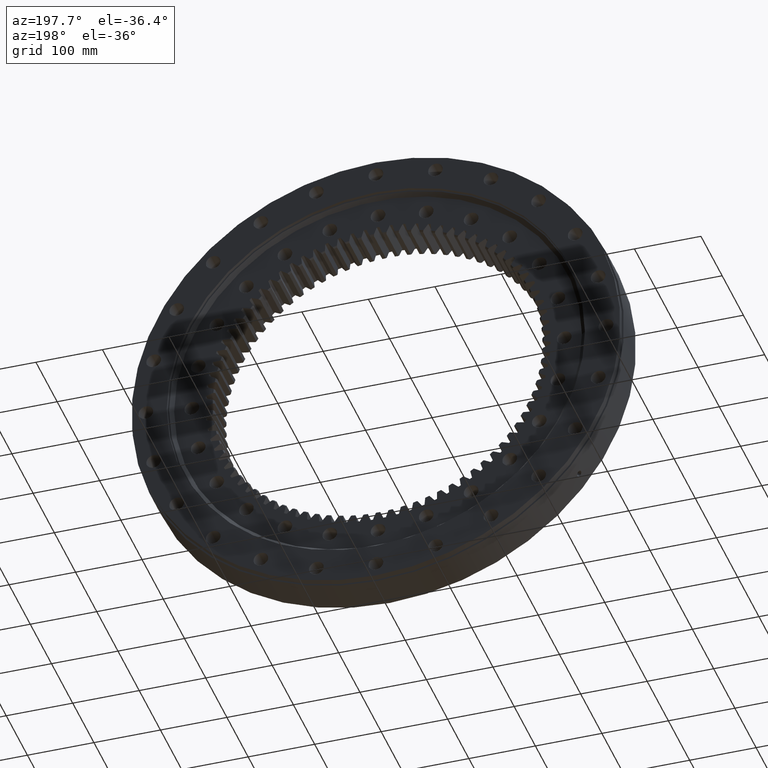
[diagram: clean part render]
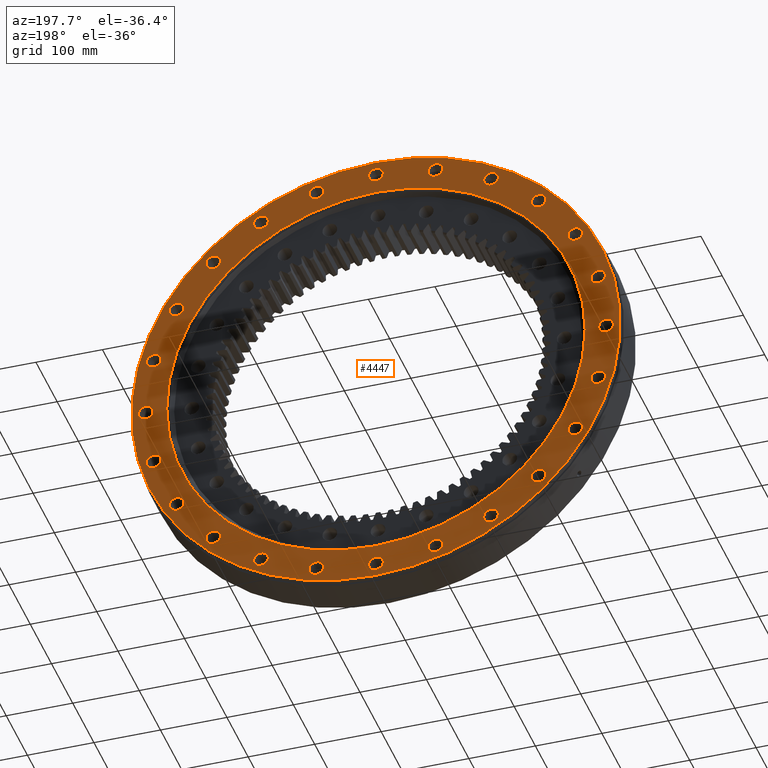
[diagram: same view with one face highlighted and labeled with its STEP entity id]
A machine part, auxiliary view. The second image highlights one B-rep face of the part: STEP entity #4447.
In plain terms, the highlighted planar face has unit normal (0, -1, -0).
Its self-contained STEP definition (entity closure, byte-faithful):
#24 = DIRECTION ( 'NONE',  ( 0.5000000000000007800, 0.0000000000000000000, 0.8660254037844382600 ) ) ;
#54 = CIRCLE ( 'NONE', #20363, 10.99999999999997200 ) ;
#70 = DIRECTION ( 'NONE',  ( 1.173697223544192200E-016, -1.000000000000000000, -3.494217355385783800E-017 ) ) ;
#99 = CARTESIAN_POINT ( 'NONE',  ( 172.9999999999959900, 38.00000000000005000, 299.6447897094180300 ) ) ;
#200 = CARTESIAN_POINT ( 'NONE',  ( 334.2103358960185900, 38.00000000000008500, -89.55138960546870000 ) ) ;
#221 = EDGE_LOOP ( 'NONE', ( #4248, #13904 ) ) ;
#222 = DIRECTION ( 'NONE',  ( 1.173697223544192200E-016, -1.000000000000000000, -3.494217355385783800E-017 ) ) ;
#233 = DIRECTION ( 'NONE',  ( 0.9659258262890670900, 0.0000000000000000000, -0.2588190451025252400 ) ) ;
#323 = VERTEX_POINT ( 'NONE', #11450 ) ;
#373 = EDGE_CURVE ( 'NONE', #15380, #14914, #3623, .T. ) ;
#429 = CIRCLE ( 'NONE', #5366, 367.5000000000000600 ) ;
#485 = AXIS2_PLACEMENT_3D ( 'NONE', #14928, #14878, #13262 ) ;
#541 = ORIENTED_EDGE ( 'NONE', *, *, #12255, .T. ) ;
#545 = ORIENTED_EDGE ( 'NONE', *, *, #2828, .T. ) ;
#556 = AXIS2_PLACEMENT_3D ( 'NONE', #20805, #20931, #20874 ) ;
#627 = VERTEX_POINT ( 'NONE', #15494 ) ;
#723 = EDGE_CURVE ( 'NONE', #18666, #11022, #4798, .T. ) ;
#844 = CIRCLE ( 'NONE', #21477, 11.00000000000000900 ) ;
#854 = EDGE_CURVE ( 'NONE', #4955, #9585, #6312, .T. ) ;
#957 = CARTESIAN_POINT ( 'NONE',  ( -346.0000000000000000, 38.00000000000000000, -11.00000000000140200 ) ) ;
#972 = VERTEX_POINT ( 'NONE', #16636 ) ;
#999 = CARTESIAN_POINT ( 'NONE',  ( 244.6589462905422700, 38.00000000000006400, 244.6589462905486100 ) ) ;
#1196 = CARTESIAN_POINT ( 'NONE',  ( 299.6447897094174700, 38.00000000000008500, -183.9999999999970700 ) ) ;
#1205 = CIRCLE ( 'NONE', #10893, 11.00000000000000900 ) ;
#1413 = AXIS2_PLACEMENT_3D ( 'NONE', #17283, #17515, #17810 ) ;
#1418 = CARTESIAN_POINT ( 'NONE',  ( -173.0000000000004800, 38.00000000000000700, 288.6447897094154200 ) ) ;
#1436 = AXIS2_PLACEMENT_3D ( 'NONE', #99, #70, #24 ) ;
#1458 = DIRECTION ( 'NONE',  ( 0.2588190451025145200, 0.0000000000000000000, -0.9659258262890698700 ) ) ;
#1467 = EDGE_LOOP ( 'NONE', ( #4225, #12843 ) ) ;
#1481 = DIRECTION ( 'NONE',  ( 1.173697223544192200E-016, -1.000000000000000000, -3.494217355385783800E-017 ) ) ;
#1509 = CARTESIAN_POINT ( 'NONE',  ( 89.55138960547488100, 38.00000000000007100, -334.2103358960168300 ) ) ;
#1591 = CARTESIAN_POINT ( 'NONE',  ( -5.028712439446564900E-012, 38.00000000000002800, 357.0000000000000000 ) ) ;
#1647 = CARTESIAN_POINT ( 'NONE',  ( -89.55138960547256500, 38.00000000000001400, 334.2103358960174500 ) ) ;
#1705 = VERTEX_POINT ( 'NONE', #1814 ) ;
#1716 = EDGE_CURVE ( 'NONE', #14833, #11109, #20801, .T. ) ;
#1721 = VERTEX_POINT ( 'NONE', #1591 ) ;
#1774 = CARTESIAN_POINT ( 'NONE',  ( -244.6589462905439500, 38.00000000000002100, -233.6589462905468500 ) ) ;
#1814 = CARTESIAN_POINT ( 'NONE',  ( 172.9999999999959900, 38.00000000000005000, 288.6447897094180300 ) ) ;
#1849 = CARTESIAN_POINT ( 'NONE',  ( -334.2103358960171700, 38.00000000000000000, -78.55138960547373000 ) ) ;
#1885 = DIRECTION ( 'NONE',  ( 1.173697223544192200E-016, -1.000000000000000000, -3.494217355385783800E-017 ) ) ;
#2051 = EDGE_CURVE ( 'NONE', #972, #16675, #19646, .T. ) ;
#2112 = AXIS2_PLACEMENT_3D ( 'NONE', #14117, #14041, #14141 ) ;
#2190 = VERTEX_POINT ( 'NONE', #12585 ) ;
#2238 = AXIS2_PLACEMENT_3D ( 'NONE', #12276, #17198, #16987 ) ;
#2383 = CARTESIAN_POINT ( 'NONE',  ( -299.6447897094162200, 38.00000000000000000, 183.9999999999991800 ) ) ;
#2625 = DIRECTION ( 'NONE',  ( -0.4999999999999891200, 0.0000000000000000000, 0.8660254037844450400 ) ) ;
#2684 = ORIENTED_EDGE ( 'NONE', *, *, #723, .T. ) ;
#2724 = AXIS2_PLACEMENT_3D ( 'NONE', #13553, #13629, #13600 ) ;
#2760 = ORIENTED_EDGE ( 'NONE', *, *, #6707, .T. ) ;
#2828 = EDGE_CURVE ( 'NONE', #13437, #8692, #17157, .T. ) ;
#2871 = AXIS2_PLACEMENT_3D ( 'NONE', #19954, #20311, #20489 ) ;
#2979 = EDGE_CURVE ( 'NONE', #21047, #12428, #17179, .T. ) ;
#3052 = AXIS2_PLACEMENT_3D ( 'NONE', #6731, #6805, #6827 ) ;
#3055 = DIRECTION ( 'NONE',  ( 1.173697223544192200E-016, -1.000000000000000000, -3.494217355385783800E-017 ) ) ;
#3068 = ORIENTED_EDGE ( 'NONE', *, *, #12860, .T. ) ;
#3102 = CARTESIAN_POINT ( 'NONE',  ( -346.0000000000000000, 38.00000000000000000, 10.99999999999860200 ) ) ;
#3122 = VERTEX_POINT ( 'NONE', #11400 ) ;
#3129 = EDGE_CURVE ( 'NONE', #16675, #972, #19007, .T. ) ;
#3279 = ORIENTED_EDGE ( 'NONE', *, *, #21083, .T. ) ;
#3315 = CARTESIAN_POINT ( 'NONE',  ( 334.2103358960185900, 38.00000000000008500, -100.5513896054687000 ) ) ;
#3366 = CARTESIAN_POINT ( 'NONE',  ( 244.6589462905477000, 38.00000000000007800, -244.6589462905431300 ) ) ;
#3623 = CIRCLE ( 'NONE', #8027, 11.00000000000000000 ) ;
#3877 = EDGE_CURVE ( 'NONE', #9665, #6852, #54, .T. ) ;
#3937 = ORIENTED_EDGE ( 'NONE', *, *, #13693, .T. ) ;
#4057 = EDGE_CURVE ( 'NONE', #1705, #6694, #9351, .T. ) ;
#4160 = VERTEX_POINT ( 'NONE', #1774 ) ;
#4186 = CIRCLE ( 'NONE', #19921, 11.00000000000002300 ) ;
#4225 = ORIENTED_EDGE ( 'NONE', *, *, #6395, .T. ) ;
#4248 = ORIENTED_EDGE ( 'NONE', *, *, #854, .T. ) ;
#4289 = VERTEX_POINT ( 'NONE', #8143 ) ;
#4352 = EDGE_LOOP ( 'NONE', ( #12825, #5717 ) ) ;
#4447 = ADVANCED_FACE ( 'NONE', ( #15071, #14787, #5737, #15118, #15282, #15194, #14978, #14562, #14742, #14780, #14401, #14435, #14508, #14263, #14280, #14373, #14195, #14242, #14259, #14074, #14100, #14120, #13906, #13925, #14029, #13723 ), #8994, .F. ) ;
#4459 = EDGE_LOOP ( 'NONE', ( #4824, #5560 ) ) ;
#4469 = CIRCLE ( 'NONE', #20648, 10.99999999999999800 ) ;
#4556 = EDGE_CURVE ( 'NONE', #6852, #9665, #13407, .T. ) ;
#4610 = AXIS2_PLACEMENT_3D ( 'NONE', #10048, #10051, #10071 ) ;
#4798 = CIRCLE ( 'NONE', #22945, 314.5875000000000300 ) ;
#4824 = ORIENTED_EDGE ( 'NONE', *, *, #20247, .T. ) ;
#4869 = VERTEX_POINT ( 'NONE', #4932 ) ;
#4932 = CARTESIAN_POINT ( 'NONE',  ( 173.0000000000025600, 38.00000000000007800, -310.6447897094142800 ) ) ;
#4953 = AXIS2_PLACEMENT_3D ( 'NONE', #18696, #18700, #18720 ) ;
#4955 = VERTEX_POINT ( 'NONE', #20771 ) ;
#5067 = DIRECTION ( 'NONE',  ( 0.8660254037844371500, 0.0000000000000000000, -0.5000000000000025500 ) ) ;
#5116 = VERTEX_POINT ( 'NONE', #16570 ) ;
#5168 = VERTEX_POINT ( 'NONE', #6287 ) ;
#5229 = CARTESIAN_POINT ( 'NONE',  ( -172.9999999999981200, 38.00000000000003600, -288.6447897094168400 ) ) ;
#5366 = AXIS2_PLACEMENT_3D ( 'NONE', #9718, #9680, #9738 ) ;
#5505 = AXIS2_PLACEMENT_3D ( 'NONE', #21055, #21009, #21025 ) ;
#5528 = AXIS2_PLACEMENT_3D ( 'NONE', #17978, #18352, #18204 ) ;
#5556 = CARTESIAN_POINT ( 'NONE',  ( 346.0000000000000000, 38.00000000000008500, 3.818138272015963700E-012 ) ) ;
#5560 = ORIENTED_EDGE ( 'NONE', *, *, #18274, .T. ) ;
#5578 = CIRCLE ( 'NONE', #16697, 11.00000000000000000 ) ;
#5588 = DIRECTION ( 'NONE',  ( 1.173697223544192200E-016, -1.000000000000000000, -3.494217355385783800E-017 ) ) ;
#5664 = CARTESIAN_POINT ( 'NONE',  ( -89.55138960546985100, 38.00000000000004300, -334.2103358960182500 ) ) ;
#5684 = CARTESIAN_POINT ( 'NONE',  ( -299.6447897094148500, 38.00000000000001400, -162.0000000000015300 ) ) ;
#5712 = DIRECTION ( 'NONE',  ( 1.173697223544192200E-016, -1.000000000000000000, -3.494217355385783800E-017 ) ) ;
#5717 = ORIENTED_EDGE ( 'NONE', *, *, #7416, .T. ) ;
#5720 = CARTESIAN_POINT ( 'NONE',  ( 299.6447897094136600, 38.00000000000007100, 173.0000000000036100 ) ) ;
#5732 = DIRECTION ( 'NONE',  ( 1.000000000000000000, 0.0000000000000000000, -3.546992490074383300E-015 ) ) ;
#5737 = FACE_BOUND ( 'NONE', #16458, .T. ) ;
#5756 = VERTEX_POINT ( 'NONE', #21580 ) ;
#5793 = EDGE_CURVE ( 'NONE', #20763, #8168, #20097, .T. ) ;
#5810 = CIRCLE ( 'NONE', #18519, 11.00000000000001100 ) ;
#5983 = EDGE_CURVE ( 'NONE', #6694, #1705, #7682, .T. ) ;
#6007 = AXIS2_PLACEMENT_3D ( 'NONE', #1647, #1885, #19518 ) ;
#6045 = DIRECTION ( 'NONE',  ( 0.7071067811865501300, 0.0000000000000000000, 0.7071067811865450200 ) ) ;
#6287 = CARTESIAN_POINT ( 'NONE',  ( 1.594029862801932000E-014, 38.00000000000003600, 367.5000000000000600 ) ) ;
#6312 = CIRCLE ( 'NONE', #10777, 10.99999999999999100 ) ;
#6395 = EDGE_CURVE ( 'NONE', #20970, #21313, #22747, .T. ) ;
#6406 = DIRECTION ( 'NONE',  ( 1.173697223544192200E-016, -1.000000000000000000, -3.494217355385783800E-017 ) ) ;
#6421 = AXIS2_PLACEMENT_3D ( 'NONE', #10804, #21935, #11804 ) ;
#6432 = CARTESIAN_POINT ( 'NONE',  ( -334.2103358960179700, 38.00000000000000000, 78.55138960547101600 ) ) ;
#6449 = CARTESIAN_POINT ( 'NONE',  ( 2.604297876731724900E-012, 38.00000000000005700, -346.0000000000000000 ) ) ;
#6470 = DIRECTION ( 'NONE',  ( 0.8660254037844393700, 0.0000000000000000000, 0.4999999999999987800 ) ) ;
#6475 = DIRECTION ( 'NONE',  ( -7.038473828917530100E-015, 0.0000000000000000000, -1.000000000000000000 ) ) ;
#6560 = AXIS2_PLACEMENT_3D ( 'NONE', #9815, #9821, #9848 ) ;
#6561 = DIRECTION ( 'NONE',  ( 1.173697223544192200E-016, -1.000000000000000000, -3.494217355385783800E-017 ) ) ;
#6565 = EDGE_CURVE ( 'NONE', #11022, #18666, #7959, .T. ) ;
#6605 = ORIENTED_EDGE ( 'NONE', *, *, #12594, .T. ) ;
#6628 = ORIENTED_EDGE ( 'NONE', *, *, #1716, .T. ) ;
#6694 = VERTEX_POINT ( 'NONE', #11589 ) ;
#6707 = EDGE_CURVE ( 'NONE', #7458, #9229, #5578, .T. ) ;
#6718 = EDGE_LOOP ( 'NONE', ( #12553, #2760 ) ) ;
#6731 = CARTESIAN_POINT ( 'NONE',  ( -89.55138960547256500, 38.00000000000001400, 334.2103358960174500 ) ) ;
#6757 = AXIS2_PLACEMENT_3D ( 'NONE', #21285, #21749, #21674 ) ;
#6796 = EDGE_LOOP ( 'NONE', ( #12237, #22074 ) ) ;
#6805 = DIRECTION ( 'NONE',  ( 1.173697223544192200E-016, -1.000000000000000000, -3.494217355385783800E-017 ) ) ;
#6827 = DIRECTION ( 'NONE',  ( -0.2588190451025075300, 0.0000000000000000000, 0.9659258262890719800 ) ) ;
#6852 = VERTEX_POINT ( 'NONE', #13486 ) ;
#7009 = EDGE_LOOP ( 'NONE', ( #21294, #21554 ) ) ;
#7045 = CARTESIAN_POINT ( 'NONE',  ( 334.2103358960165500, 38.00000000000008500, 78.55138960547607500 ) ) ;
#7149 = EDGE_CURVE ( 'NONE', #4160, #3122, #19550, .T. ) ;
#7246 = CARTESIAN_POINT ( 'NONE',  ( 2.608781700232964700E-012, 38.00000000000005700, -334.9999999999999400 ) ) ;
#7267 = EDGE_LOOP ( 'NONE', ( #22097, #21803 ) ) ;
#7377 = EDGE_LOOP ( 'NONE', ( #2684, #12291 ) ) ;
#7397 = EDGE_LOOP ( 'NONE', ( #3279, #15392 ) ) ;
#7416 = EDGE_CURVE ( 'NONE', #7702, #11827, #17249, .T. ) ;
#7442 = AXIS2_PLACEMENT_3D ( 'NONE', #18601, #18626, #18605 ) ;
#7458 = VERTEX_POINT ( 'NONE', #19199 ) ;
#7614 = EDGE_CURVE ( 'NONE', #5756, #4869, #16970, .T. ) ;
#7616 = VERTEX_POINT ( 'NONE', #20348 ) ;
#7661 = CARTESIAN_POINT ( 'NONE',  ( -6.927931878384833700E-014, 38.00000000000006400, -367.5000000000000600 ) ) ;
#7682 = CIRCLE ( 'NONE', #18017, 10.99999999999999500 ) ;
#7702 = VERTEX_POINT ( 'NONE', #21001 ) ;
#7715 = EDGE_CURVE ( 'NONE', #14914, #15380, #21572, .T. ) ;
#7776 = DIRECTION ( 'NONE',  ( 1.173697223544192200E-016, -1.000000000000000000, -3.494217355385783800E-017 ) ) ;
#7928 = CIRCLE ( 'NONE', #10854, 11.00000000000000900 ) ;
#7959 = CIRCLE ( 'NONE', #4610, 314.5875000000000300 ) ;
#7995 = DIRECTION ( 'NONE',  ( -0.9659258262890708700, 0.0000000000000000000, -0.2588190451025110300 ) ) ;
#8027 = AXIS2_PLACEMENT_3D ( 'NONE', #22271, #22225, #22127 ) ;
#8143 = CARTESIAN_POINT ( 'NONE',  ( 2.606213343426814900E-012, 38.00000000000005700, -357.0000000000000000 ) ) ;
#8168 = VERTEX_POINT ( 'NONE', #1849 ) ;
#8251 = CARTESIAN_POINT ( 'NONE',  ( -173.0000000000004800, 38.00000000000000700, 299.6447897094154200 ) ) ;
#8583 = EDGE_LOOP ( 'NONE', ( #3937, #13945 ) ) ;
#8685 = CARTESIAN_POINT ( 'NONE',  ( -334.2103358960179700, 38.00000000000000000, 89.55138960547101600 ) ) ;
#8692 = VERTEX_POINT ( 'NONE', #18206 ) ;
#8709 = EDGE_LOOP ( 'NONE', ( #3068, #14211 ) ) ;
#8716 = CARTESIAN_POINT ( 'NONE',  ( 299.6447897094174700, 38.00000000000008500, -161.9999999999970700 ) ) ;
#8746 = CARTESIAN_POINT ( 'NONE',  ( 244.6589462905422700, 38.00000000000006400, 255.6589462905485800 ) ) ;
#8839 = CIRCLE ( 'NONE', #20779, 11.00000000000001100 ) ;
#8994 = PLANE ( 'NONE',  #17982 ) ;
#9001 = CIRCLE ( 'NONE', #10072, 11.00000000000000500 ) ;
#9087 = CARTESIAN_POINT ( 'NONE',  ( -346.0000000000000000, 38.00000000000000000, -1.399377580346421800E-012 ) ) ;
#9166 = DIRECTION ( 'NONE',  ( -1.000000000000000000, 0.0000000000000000000, 1.052995516776064200E-014 ) ) ;
#9216 = DIRECTION ( 'NONE',  ( 1.173697223544192200E-016, -1.000000000000000000, -3.494217355385783800E-017 ) ) ;
#9229 = VERTEX_POINT ( 'NONE', #8746 ) ;
#9338 = CARTESIAN_POINT ( 'NONE',  ( 346.0000000000000000, 38.00000000000008500, -10.99999999999618300 ) ) ;
#9351 = CIRCLE ( 'NONE', #1436, 10.99999999999999500 ) ;
#9456 = CIRCLE ( 'NONE', #6421, 11.00000000000001100 ) ;
#9585 = VERTEX_POINT ( 'NONE', #3315 ) ;
#9665 = VERTEX_POINT ( 'NONE', #1418 ) ;
#9680 = DIRECTION ( 'NONE',  ( -1.173697223544192200E-016, 1.000000000000000000, 3.494217355385783800E-017 ) ) ;
#9700 = VERTEX_POINT ( 'NONE', #1196 ) ;
#9718 = CARTESIAN_POINT ( 'NONE',  ( -4.460049449467935900E-015, 38.00000000000005000, 9.638363904326468500E-017 ) ) ;
#9738 = DIRECTION ( 'NONE',  ( 5.551115123125782700E-017, -3.776268791242028300E-017, 1.000000000000000000 ) ) ;
#9787 = AXIS2_PLACEMENT_3D ( 'NONE', #5720, #6406, #6470 ) ;
#9815 = CARTESIAN_POINT ( 'NONE',  ( -334.2103358960179700, 38.00000000000000000, 89.55138960547101600 ) ) ;
#9821 = DIRECTION ( 'NONE',  ( 1.173697223544192200E-016, -1.000000000000000000, -3.494217355385783800E-017 ) ) ;
#9848 = DIRECTION ( 'NONE',  ( -0.9659258262890655400, 0.0000000000000000000, 0.2588190451025311200 ) ) ;
#9858 = CARTESIAN_POINT ( 'NONE',  ( 172.9999999999959900, 38.00000000000005000, 299.6447897094180300 ) ) ;
#9945 = CIRCLE ( 'NONE', #556, 11.00000000000001100 ) ;
#10037 = VERTEX_POINT ( 'NONE', #7661 ) ;
#10048 = CARTESIAN_POINT ( 'NONE',  ( -4.460049449467935900E-015, 38.00000000000005000, 1.327802595046599300E-015 ) ) ;
#10051 = DIRECTION ( 'NONE',  ( 1.173697223544192200E-016, -1.000000000000000000, -3.494217355385783800E-017 ) ) ;
#10071 = DIRECTION ( 'NONE',  ( 5.551115123125782700E-017, -4.411423787599461100E-017, 1.000000000000000000 ) ) ;
#10072 = AXIS2_PLACEMENT_3D ( 'NONE', #10388, #18103, #7995 ) ;
#10137 = CIRCLE ( 'NONE', #5505, 10.99999999999999800 ) ;
#10164 = VERTEX_POINT ( 'NONE', #15951 ) ;
#10332 = CARTESIAN_POINT ( 'NONE',  ( 346.0000000000000000, 38.00000000000008500, 11.00000000000381900 ) ) ;
#10388 = CARTESIAN_POINT ( 'NONE',  ( -334.2103358960171700, 38.00000000000000000, -89.55138960547371600 ) ) ;
#10410 = CIRCLE ( 'NONE', #18682, 11.00000000000001100 ) ;
#10513 = DIRECTION ( 'NONE',  ( 1.173697223544192200E-016, -1.000000000000000000, -3.494217355385783800E-017 ) ) ;
#10601 = AXIS2_PLACEMENT_3D ( 'NONE', #12796, #12848, #12913 ) ;
#10777 = AXIS2_PLACEMENT_3D ( 'NONE', #12306, #15855, #12235 ) ;
#10804 = CARTESIAN_POINT ( 'NONE',  ( -346.0000000000000000, 38.00000000000000000, -1.399377580346421800E-012 ) ) ;
#10854 = AXIS2_PLACEMENT_3D ( 'NONE', #13103, #18045, #5067 ) ;
#10875 = CARTESIAN_POINT ( 'NONE',  ( -244.6589462905460300, 38.00000000000000700, 244.6589462905448600 ) ) ;
#10889 = CARTESIAN_POINT ( 'NONE',  ( -299.6447897094162200, 38.00000000000000000, 161.9999999999991500 ) ) ;
#10893 = AXIS2_PLACEMENT_3D ( 'NONE', #8685, #10513, #12367 ) ;
#10939 = EDGE_CURVE ( 'NONE', #3122, #4160, #18435, .T. ) ;
#10957 = DIRECTION ( 'NONE',  ( 0.5000000000000007800, 0.0000000000000000000, 0.8660254037844382600 ) ) ;
#10980 = AXIS2_PLACEMENT_3D ( 'NONE', #20538, #20579, #20581 ) ;
#11022 = VERTEX_POINT ( 'NONE', #14715 ) ;
#11109 = VERTEX_POINT ( 'NONE', #20394 ) ;
#11117 = AXIS2_PLACEMENT_3D ( 'NONE', #5556, #5712, #5732 ) ;
#11198 = AXIS2_PLACEMENT_3D ( 'NONE', #12260, #12181, #12372 ) ;
#11272 = CIRCLE ( 'NONE', #21356, 11.00000000000001100 ) ;
#11303 = ORIENTED_EDGE ( 'NONE', *, *, #4556, .T. ) ;
#11344 = ORIENTED_EDGE ( 'NONE', *, *, #11782, .T. ) ;
#11350 = CARTESIAN_POINT ( 'NONE',  ( -89.55138960547256500, 38.00000000000001400, 345.2103358960174500 ) ) ;
#11359 = CARTESIAN_POINT ( 'NONE',  ( 1.300306483849538700E-014, 38.00000000000003600, 314.5875000000000300 ) ) ;
#11360 = VERTEX_POINT ( 'NONE', #3102 ) ;
#11383 = ORIENTED_EDGE ( 'NONE', *, *, #16626, .T. ) ;
#11400 = CARTESIAN_POINT ( 'NONE',  ( -244.6589462905439500, 38.00000000000002100, -255.6589462905468500 ) ) ;
#11450 = CARTESIAN_POINT ( 'NONE',  ( 89.55138960546752000, 38.00000000000004300, 345.2103358960188800 ) ) ;
#11475 = EDGE_CURVE ( 'NONE', #13425, #4289, #16802, .T. ) ;
#11551 = CARTESIAN_POINT ( 'NONE',  ( -89.55138960546985100, 38.00000000000004300, -323.2103358960181900 ) ) ;
#11589 = CARTESIAN_POINT ( 'NONE',  ( 172.9999999999959900, 38.00000000000005000, 310.6447897094180300 ) ) ;
#11686 = CIRCLE ( 'NONE', #9787, 10.99999999999998000 ) ;
#11706 = CARTESIAN_POINT ( 'NONE',  ( -5.029323062110108700E-012, 38.00000000000002800, 346.0000000000000000 ) ) ;
#11738 = CIRCLE ( 'NONE', #13897, 11.00000000000002000 ) ;
#11782 = EDGE_CURVE ( 'NONE', #11109, #14833, #15988, .T. ) ;
#11804 = DIRECTION ( 'NONE',  ( -1.000000000000000000, 0.0000000000000000000, 1.052995516776064200E-014 ) ) ;
#11827 = VERTEX_POINT ( 'NONE', #14870 ) ;
#11884 = DIRECTION ( 'NONE',  ( 5.551115123123597300E-017, 0.0000000000000000000, 1.000000000000000000 ) ) ;
#11919 = DIRECTION ( 'NONE',  ( 1.173697223544192200E-016, -1.000000000000000000, -3.494217355385783800E-017 ) ) ;
#12014 = CARTESIAN_POINT ( 'NONE',  ( 244.6589462905422700, 38.00000000000006400, 244.6589462905486100 ) ) ;
#12037 = DIRECTION ( 'NONE',  ( 1.173697223544192200E-016, -1.000000000000000000, -3.494217355385783800E-017 ) ) ;
#12040 = DIRECTION ( 'NONE',  ( 0.7071067811865501300, 0.0000000000000000000, 0.7071067811865450200 ) ) ;
#12118 = VERTEX_POINT ( 'NONE', #6432 ) ;
#12119 = CIRCLE ( 'NONE', #1413, 10.99999999999998000 ) ;
#12181 = DIRECTION ( 'NONE',  ( 1.173697223544192200E-016, -1.000000000000000000, -3.494217355385783800E-017 ) ) ;
#12235 = DIRECTION ( 'NONE',  ( 0.9659258262890670900, 0.0000000000000000000, -0.2588190451025252400 ) ) ;
#12237 = ORIENTED_EDGE ( 'NONE', *, *, #5983, .T. ) ;
#12255 = EDGE_CURVE ( 'NONE', #8692, #13437, #14331, .T. ) ;
#12260 = CARTESIAN_POINT ( 'NONE',  ( 89.55138960546752000, 38.00000000000004300, 334.2103358960188200 ) ) ;
#12276 = CARTESIAN_POINT ( 'NONE',  ( -334.2103358960171700, 38.00000000000000000, -89.55138960547371600 ) ) ;
#12291 = ORIENTED_EDGE ( 'NONE', *, *, #6565, .T. ) ;
#12295 = CIRCLE ( 'NONE', #11198, 10.99999999999998000 ) ;
#12306 = CARTESIAN_POINT ( 'NONE',  ( 334.2103358960185900, 38.00000000000008500, -89.55138960546870000 ) ) ;
#12367 = DIRECTION ( 'NONE',  ( -0.9659258262890655400, 0.0000000000000000000, 0.2588190451025311200 ) ) ;
#12372 = DIRECTION ( 'NONE',  ( 0.2588190451025216800, 0.0000000000000000000, 0.9659258262890679800 ) ) ;
#12428 = VERTEX_POINT ( 'NONE', #2383 ) ;
#12459 = VERTEX_POINT ( 'NONE', #8716 ) ;
#12553 = ORIENTED_EDGE ( 'NONE', *, *, #22956, .T. ) ;
#12584 = CIRCLE ( 'NONE', #14316, 10.99999999999998600 ) ;
#12585 = CARTESIAN_POINT ( 'NONE',  ( 334.2103358960165500, 38.00000000000008500, 100.5513896054760600 ) ) ;
#12594 = EDGE_CURVE ( 'NONE', #4869, #5756, #13365, .T. ) ;
#12692 = EDGE_LOOP ( 'NONE', ( #16238, #16738 ) ) ;
#12722 = EDGE_CURVE ( 'NONE', #20447, #13621, #12584, .T. ) ;
#12796 = CARTESIAN_POINT ( 'NONE',  ( -4.460049449467935900E-015, 38.00000000000005000, 9.638363904326468500E-017 ) ) ;
#12825 = ORIENTED_EDGE ( 'NONE', *, *, #16818, .T. ) ;
#12843 = ORIENTED_EDGE ( 'NONE', *, *, #19382, .T. ) ;
#12848 = DIRECTION ( 'NONE',  ( -1.173697223544192200E-016, 1.000000000000000000, 3.494217355385783800E-017 ) ) ;
#12860 = EDGE_CURVE ( 'NONE', #5116, #18743, #11738, .T. ) ;
#12892 = EDGE_LOOP ( 'NONE', ( #11303, #15849 ) ) ;
#12913 = DIRECTION ( 'NONE',  ( 5.551115123125782700E-017, -3.776268791242028300E-017, 1.000000000000000000 ) ) ;
#12998 = DIRECTION ( 'NONE',  ( 1.173697223544192200E-016, -1.000000000000000000, -3.494217355385783800E-017 ) ) ;
#13103 = CARTESIAN_POINT ( 'NONE',  ( 299.6447897094174700, 38.00000000000008500, -172.9999999999970700 ) ) ;
#13123 = CARTESIAN_POINT ( 'NONE',  ( -334.2103358960171700, 38.00000000000000000, -100.5513896054737200 ) ) ;
#13262 = DIRECTION ( 'NONE',  ( -0.7071067811865373600, 0.0000000000000000000, 0.7071067811865575600 ) ) ;
#13365 = CIRCLE ( 'NONE', #2112, 11.00000000000001400 ) ;
#13379 = EDGE_CURVE ( 'NONE', #8168, #20763, #9001, .T. ) ;
#13407 = CIRCLE ( 'NONE', #5528, 10.99999999999997200 ) ;
#13425 = VERTEX_POINT ( 'NONE', #7246 ) ;
#13437 = VERTEX_POINT ( 'NONE', #11350 ) ;
#13486 = CARTESIAN_POINT ( 'NONE',  ( -173.0000000000004800, 38.00000000000000700, 310.6447897094154200 ) ) ;
#13553 = CARTESIAN_POINT ( 'NONE',  ( 89.55138960547488100, 38.00000000000007100, -334.2103358960168300 ) ) ;
#13572 = DIRECTION ( 'NONE',  ( 0.8660254037844371500, 0.0000000000000000000, -0.5000000000000025500 ) ) ;
#13600 = DIRECTION ( 'NONE',  ( 0.2588190451025145200, 0.0000000000000000000, -0.9659258262890698700 ) ) ;
#13621 = VERTEX_POINT ( 'NONE', #5229 ) ;
#13629 = DIRECTION ( 'NONE',  ( 1.173697223544192200E-016, -1.000000000000000000, -3.494217355385783800E-017 ) ) ;
#13693 = EDGE_CURVE ( 'NONE', #12459, #9700, #7928, .T. ) ;
#13723 = FACE_BOUND ( 'NONE', #7377, .T. ) ;
#13795 = DIRECTION ( 'NONE',  ( 5.551115123125782700E-017, -4.411423787599461100E-017, 1.000000000000000000 ) ) ;
#13800 = DIRECTION ( 'NONE',  ( 1.173697223544192200E-016, -1.000000000000000000, -3.494217355385783800E-017 ) ) ;
#13828 = CARTESIAN_POINT ( 'NONE',  ( -4.460049449467935900E-015, 38.00000000000005000, 1.327802595046599300E-015 ) ) ;
#13865 = CARTESIAN_POINT ( 'NONE',  ( 1.300306483849538700E-014, 38.00000000000003600, 314.5875000000000300 ) ) ;
#13875 = DIRECTION ( 'NONE',  ( -0.2588190451025276200, 0.0000000000000000000, -0.9659258262890664200 ) ) ;
#13877 = VERTEX_POINT ( 'NONE', #957 ) ;
#13882 = AXIS2_PLACEMENT_3D ( 'NONE', #15862, #15865, #15898 ) ;
#13897 = AXIS2_PLACEMENT_3D ( 'NONE', #21515, #21467, #21685 ) ;
#13904 = ORIENTED_EDGE ( 'NONE', *, *, #22359, .T. ) ;
#13906 = FACE_BOUND ( 'NONE', #7009, .T. ) ;
#13925 = FACE_BOUND ( 'NONE', #7267, .T. ) ;
#13945 = ORIENTED_EDGE ( 'NONE', *, *, #15736, .T. ) ;
#14029 = FACE_OUTER_BOUND ( 'NONE', #7397, .T. ) ;
#14041 = DIRECTION ( 'NONE',  ( 1.173697223544192200E-016, -1.000000000000000000, -3.494217355385783800E-017 ) ) ;
#14074 = FACE_BOUND ( 'NONE', #4352, .T. ) ;
#14100 = FACE_BOUND ( 'NONE', #6718, .T. ) ;
#14117 = CARTESIAN_POINT ( 'NONE',  ( 173.0000000000025600, 38.00000000000007800, -299.6447897094142800 ) ) ;
#14120 = FACE_BOUND ( 'NONE', #6796, .T. ) ;
#14141 = DIRECTION ( 'NONE',  ( 0.4999999999999947300, 0.0000000000000000000, -0.8660254037844417100 ) ) ;
#14195 = FACE_BOUND ( 'NONE', #221, .T. ) ;
#14211 = ORIENTED_EDGE ( 'NONE', *, *, #18252, .T. ) ;
#14242 = FACE_BOUND ( 'NONE', #1467, .T. ) ;
#14259 = FACE_BOUND ( 'NONE', #4459, .T. ) ;
#14263 = FACE_BOUND ( 'NONE', #15517, .T. ) ;
#14280 = FACE_BOUND ( 'NONE', #8709, .T. ) ;
#14305 = CARTESIAN_POINT ( 'NONE',  ( 244.6589462905477000, 38.00000000000007800, -255.6589462905431600 ) ) ;
#14316 = AXIS2_PLACEMENT_3D ( 'NONE', #17840, #17921, #17893 ) ;
#14331 = CIRCLE ( 'NONE', #3052, 10.99999999999999300 ) ;
#14373 = FACE_BOUND ( 'NONE', #8583, .T. ) ;
#14401 = FACE_BOUND ( 'NONE', #15792, .T. ) ;
#14435 = FACE_BOUND ( 'NONE', #15674, .T. ) ;
#14508 = FACE_BOUND ( 'NONE', #15391, .T. ) ;
#14562 = FACE_BOUND ( 'NONE', #16059, .T. ) ;
#14572 = AXIS2_PLACEMENT_3D ( 'NONE', #10875, #15395, #15100 ) ;
#14590 = AXIS2_PLACEMENT_3D ( 'NONE', #21399, #21439, #21462 ) ;
#14715 = CARTESIAN_POINT ( 'NONE',  ( -6.015853116728085700E-014, 38.00000000000006400, -314.5875000000000300 ) ) ;
#14742 = FACE_BOUND ( 'NONE', #15844, .T. ) ;
#14780 = FACE_BOUND ( 'NONE', #15895, .T. ) ;
#14787 = FACE_BOUND ( 'NONE', #12892, .T. ) ;
#14833 = VERTEX_POINT ( 'NONE', #17880 ) ;
#14870 = CARTESIAN_POINT ( 'NONE',  ( 299.6447897094136600, 38.00000000000007100, 184.0000000000036400 ) ) ;
#14878 = DIRECTION ( 'NONE',  ( 1.173697223544192200E-016, -1.000000000000000000, -3.494217355385783800E-017 ) ) ;
#14914 = VERTEX_POINT ( 'NONE', #20024 ) ;
#14928 = CARTESIAN_POINT ( 'NONE',  ( -244.6589462905460300, 38.00000000000000700, 244.6589462905448600 ) ) ;
#14978 = FACE_BOUND ( 'NONE', #16305, .T. ) ;
#15049 = ORIENTED_EDGE ( 'NONE', *, *, #7614, .T. ) ;
#15071 = FACE_BOUND ( 'NONE', #16905, .T. ) ;
#15100 = DIRECTION ( 'NONE',  ( -0.7071067811865373600, 0.0000000000000000000, 0.7071067811865575600 ) ) ;
#15118 = FACE_BOUND ( 'NONE', #12692, .T. ) ;
#15150 = CARTESIAN_POINT ( 'NONE',  ( -172.9999999999981200, 38.00000000000003600, -310.6447897094168400 ) ) ;
#15194 = FACE_BOUND ( 'NONE', #16637, .T. ) ;
#15282 = FACE_BOUND ( 'NONE', #16836, .T. ) ;
#15372 = ORIENTED_EDGE ( 'NONE', *, *, #2051, .T. ) ;
#15380 = VERTEX_POINT ( 'NONE', #5684 ) ;
#15391 = EDGE_LOOP ( 'NONE', ( #11344, #6628 ) ) ;
#15392 = ORIENTED_EDGE ( 'NONE', *, *, #20817, .T. ) ;
#15395 = DIRECTION ( 'NONE',  ( 1.173697223544192200E-016, -1.000000000000000000, -3.494217355385783800E-017 ) ) ;
#15494 = CARTESIAN_POINT ( 'NONE',  ( -89.55138960546985100, 38.00000000000004300, -345.2103358960182500 ) ) ;
#15517 = EDGE_LOOP ( 'NONE', ( #15049, #6605 ) ) ;
#15537 = CIRCLE ( 'NONE', #22500, 11.00000000000000000 ) ;
#15619 = EDGE_CURVE ( 'NONE', #12118, #10164, #1205, .T. ) ;
#15674 = EDGE_LOOP ( 'NONE', ( #20722, #11383 ) ) ;
#15736 = EDGE_CURVE ( 'NONE', #9700, #12459, #844, .T. ) ;
#15792 = EDGE_LOOP ( 'NONE', ( #20414, #20682 ) ) ;
#15807 = DIRECTION ( 'NONE',  ( 1.173697223544192200E-016, -1.000000000000000000, -3.494217355385783800E-017 ) ) ;
#15844 = EDGE_LOOP ( 'NONE', ( #18932, #19727 ) ) ;
#15849 = ORIENTED_EDGE ( 'NONE', *, *, #3877, .T. ) ;
#15855 = DIRECTION ( 'NONE',  ( 1.173697223544192200E-016, -1.000000000000000000, -3.494217355385783800E-017 ) ) ;
#15862 = CARTESIAN_POINT ( 'NONE',  ( -244.6589462905439500, 38.00000000000002100, -244.6589462905468500 ) ) ;
#15865 = DIRECTION ( 'NONE',  ( 1.173697223544192200E-016, -1.000000000000000000, -3.494217355385783800E-017 ) ) ;
#15895 = EDGE_LOOP ( 'NONE', ( #19175, #20232 ) ) ;
#15898 = DIRECTION ( 'NONE',  ( -0.7071067811865525700, 0.0000000000000000000, -0.7071067811865424700 ) ) ;
#15905 = DIRECTION ( 'NONE',  ( 0.9659258262890693100, 0.0000000000000000000, 0.2588190451025169100 ) ) ;
#15951 = CARTESIAN_POINT ( 'NONE',  ( -334.2103358960179700, 38.00000000000000000, 100.5513896054710200 ) ) ;
#15988 = CIRCLE ( 'NONE', #2724, 11.00000000000001600 ) ;
#16059 = EDGE_LOOP ( 'NONE', ( #18138, #19194 ) ) ;
#16229 = EDGE_CURVE ( 'NONE', #323, #16407, #12295, .T. ) ;
#16238 = ORIENTED_EDGE ( 'NONE', *, *, #19399, .T. ) ;
#16288 = CARTESIAN_POINT ( 'NONE',  ( 89.55138960546752000, 38.00000000000004300, 323.2103358960188200 ) ) ;
#16305 = EDGE_LOOP ( 'NONE', ( #17812, #18114 ) ) ;
#16407 = VERTEX_POINT ( 'NONE', #16288 ) ;
#16458 = EDGE_LOOP ( 'NONE', ( #15372, #16723 ) ) ;
#16482 = AXIS2_PLACEMENT_3D ( 'NONE', #3366, #18042, #17574 ) ;
#16570 = CARTESIAN_POINT ( 'NONE',  ( 244.6589462905477000, 38.00000000000007800, -233.6589462905431300 ) ) ;
#16586 = DIRECTION ( 'NONE',  ( 5.551115123125782700E-017, -3.494217355385783100E-017, 1.000000000000000000 ) ) ;
#16597 = DIRECTION ( 'NONE',  ( 1.173697223544192200E-016, -1.000000000000000000, -3.494217355385783800E-017 ) ) ;
#16626 = EDGE_CURVE ( 'NONE', #4289, #13425, #9945, .T. ) ;
#16636 = CARTESIAN_POINT ( 'NONE',  ( -244.6589462905460300, 38.00000000000000700, 255.6589462905448600 ) ) ;
#16637 = EDGE_LOOP ( 'NONE', ( #17008, #17785 ) ) ;
#16675 = VERTEX_POINT ( 'NONE', #21519 ) ;
#16686 = ORIENTED_EDGE ( 'NONE', *, *, #21111, .T. ) ;
#16697 = AXIS2_PLACEMENT_3D ( 'NONE', #12014, #12037, #12040 ) ;
#16723 = ORIENTED_EDGE ( 'NONE', *, *, #3129, .T. ) ;
#16738 = ORIENTED_EDGE ( 'NONE', *, *, #2979, .T. ) ;
#16802 = CIRCLE ( 'NONE', #19301, 11.00000000000001100 ) ;
#16818 = EDGE_CURVE ( 'NONE', #11827, #7702, #11686, .T. ) ;
#16836 = EDGE_LOOP ( 'NONE', ( #16686, #17769 ) ) ;
#16905 = EDGE_LOOP ( 'NONE', ( #545, #541 ) ) ;
#16970 = CIRCLE ( 'NONE', #10980, 11.00000000000001400 ) ;
#16979 = CARTESIAN_POINT ( 'NONE',  ( 334.2103358960165500, 38.00000000000008500, 89.55138960547606100 ) ) ;
#16987 = DIRECTION ( 'NONE',  ( -0.9659258262890708700, 0.0000000000000000000, -0.2588190451025110300 ) ) ;
#17008 = ORIENTED_EDGE ( 'NONE', *, *, #22504, .T. ) ;
#17157 = CIRCLE ( 'NONE', #6007, 10.99999999999999300 ) ;
#17179 = CIRCLE ( 'NONE', #6757, 11.00000000000000000 ) ;
#17198 = DIRECTION ( 'NONE',  ( 1.173697223544192200E-016, -1.000000000000000000, -3.494217355385783800E-017 ) ) ;
#17249 = CIRCLE ( 'NONE', #4953, 10.99999999999998000 ) ;
#17283 = CARTESIAN_POINT ( 'NONE',  ( 89.55138960546752000, 38.00000000000004300, 334.2103358960188200 ) ) ;
#17286 = CARTESIAN_POINT ( 'NONE',  ( 299.6447897094174700, 38.00000000000008500, -172.9999999999970700 ) ) ;
#17343 = DIRECTION ( 'NONE',  ( 1.173697223544192200E-016, -1.000000000000000000, -3.494217355385783800E-017 ) ) ;
#17396 = EDGE_CURVE ( 'NONE', #13877, #11360, #5810, .T. ) ;
#17512 = EDGE_CURVE ( 'NONE', #1721, #7616, #8839, .T. ) ;
#17515 = DIRECTION ( 'NONE',  ( 1.173697223544192200E-016, -1.000000000000000000, -3.494217355385783800E-017 ) ) ;
#17574 = DIRECTION ( 'NONE',  ( 0.7071067811865438000, 0.0000000000000000000, -0.7071067811865513500 ) ) ;
#17769 = ORIENTED_EDGE ( 'NONE', *, *, #15619, .T. ) ;
#17785 = ORIENTED_EDGE ( 'NONE', *, *, #17396, .T. ) ;
#17810 = DIRECTION ( 'NONE',  ( 0.2588190451025216800, 0.0000000000000000000, 0.9659258262890679800 ) ) ;
#17812 = ORIENTED_EDGE ( 'NONE', *, *, #13379, .T. ) ;
#17840 = CARTESIAN_POINT ( 'NONE',  ( -172.9999999999981200, 38.00000000000003600, -299.6447897094168400 ) ) ;
#17880 = CARTESIAN_POINT ( 'NONE',  ( 89.55138960547489500, 38.00000000000007100, -345.2103358960168300 ) ) ;
#17893 = DIRECTION ( 'NONE',  ( -0.5000000000000086600, 0.0000000000000000000, -0.8660254037844337100 ) ) ;
#17921 = DIRECTION ( 'NONE',  ( 1.173697223544192200E-016, -1.000000000000000000, -3.494217355385783800E-017 ) ) ;
#17978 = CARTESIAN_POINT ( 'NONE',  ( -173.0000000000004800, 38.00000000000000700, 299.6447897094154200 ) ) ;
#17982 = AXIS2_PLACEMENT_3D ( 'NONE', #13865, #7776, #16586 ) ;
#18017 = AXIS2_PLACEMENT_3D ( 'NONE', #9858, #12998, #10957 ) ;
#18042 = DIRECTION ( 'NONE',  ( 1.173697223544192200E-016, -1.000000000000000000, -3.494217355385783800E-017 ) ) ;
#18045 = DIRECTION ( 'NONE',  ( 1.173697223544192200E-016, -1.000000000000000000, -3.494217355385783800E-017 ) ) ;
#18051 = VERTEX_POINT ( 'NONE', #11551 ) ;
#18103 = DIRECTION ( 'NONE',  ( 1.173697223544192200E-016, -1.000000000000000000, -3.494217355385783800E-017 ) ) ;
#18114 = ORIENTED_EDGE ( 'NONE', *, *, #5793, .T. ) ;
#18138 = ORIENTED_EDGE ( 'NONE', *, *, #373, .T. ) ;
#18204 = DIRECTION ( 'NONE',  ( -0.4999999999999891200, 0.0000000000000000000, 0.8660254037844450400 ) ) ;
#18206 = CARTESIAN_POINT ( 'NONE',  ( -89.55138960547256500, 38.00000000000001400, 323.2103358960174500 ) ) ;
#18252 = EDGE_CURVE ( 'NONE', #18743, #5116, #19061, .T. ) ;
#18274 = EDGE_CURVE ( 'NONE', #22635, #2190, #4186, .T. ) ;
#18352 = DIRECTION ( 'NONE',  ( 1.173697223544192200E-016, -1.000000000000000000, -3.494217355385783800E-017 ) ) ;
#18398 = EDGE_CURVE ( 'NONE', #16407, #323, #12119, .T. ) ;
#18435 = CIRCLE ( 'NONE', #2871, 11.00000000000000000 ) ;
#18519 = AXIS2_PLACEMENT_3D ( 'NONE', #9087, #9216, #9166 ) ;
#18601 = CARTESIAN_POINT ( 'NONE',  ( 334.2103358960165500, 38.00000000000008500, 89.55138960547606100 ) ) ;
#18605 = DIRECTION ( 'NONE',  ( 0.9659258262890693100, 0.0000000000000000000, 0.2588190451025169100 ) ) ;
#18626 = DIRECTION ( 'NONE',  ( 1.173697223544192200E-016, -1.000000000000000000, -3.494217355385783800E-017 ) ) ;
#18651 = CARTESIAN_POINT ( 'NONE',  ( -5.029323062110108700E-012, 38.00000000000002800, 346.0000000000000000 ) ) ;
#18655 = DIRECTION ( 'NONE',  ( 1.173697223544192200E-016, -1.000000000000000000, -3.494217355385783800E-017 ) ) ;
#18666 = VERTEX_POINT ( 'NONE', #11359 ) ;
#18681 = DIRECTION ( 'NONE',  ( 5.551115123123597300E-017, 0.0000000000000000000, 1.000000000000000000 ) ) ;
#18682 = AXIS2_PLACEMENT_3D ( 'NONE', #18651, #18655, #18681 ) ;
#18696 = CARTESIAN_POINT ( 'NONE',  ( 299.6447897094136600, 38.00000000000007100, 173.0000000000036100 ) ) ;
#18700 = DIRECTION ( 'NONE',  ( 1.173697223544192200E-016, -1.000000000000000000, -3.494217355385783800E-017 ) ) ;
#18720 = DIRECTION ( 'NONE',  ( 0.8660254037844393700, 0.0000000000000000000, 0.4999999999999987800 ) ) ;
#18721 = EDGE_CURVE ( 'NONE', #18051, #627, #4469, .T. ) ;
#18743 = VERTEX_POINT ( 'NONE', #14305 ) ;
#18765 = CIRCLE ( 'NONE', #10601, 367.5000000000000600 ) ;
#18932 = ORIENTED_EDGE ( 'NONE', *, *, #7149, .T. ) ;
#18988 = AXIS2_PLACEMENT_3D ( 'NONE', #1509, #1481, #1458 ) ;
#19007 = CIRCLE ( 'NONE', #485, 11.00000000000000000 ) ;
#19061 = CIRCLE ( 'NONE', #16482, 11.00000000000002000 ) ;
#19175 = ORIENTED_EDGE ( 'NONE', *, *, #19374, .T. ) ;
#19194 = ORIENTED_EDGE ( 'NONE', *, *, #7715, .T. ) ;
#19199 = CARTESIAN_POINT ( 'NONE',  ( 244.6589462905422700, 38.00000000000006400, 233.6589462905485800 ) ) ;
#19301 = AXIS2_PLACEMENT_3D ( 'NONE', #6449, #6561, #6475 ) ;
#19374 = EDGE_CURVE ( 'NONE', #13621, #20447, #20337, .T. ) ;
#19382 = EDGE_CURVE ( 'NONE', #21313, #20970, #11272, .T. ) ;
#19399 = EDGE_CURVE ( 'NONE', #12428, #21047, #15537, .T. ) ;
#19518 = DIRECTION ( 'NONE',  ( -0.2588190451025075300, 0.0000000000000000000, 0.9659258262890719800 ) ) ;
#19538 = EDGE_CURVE ( 'NONE', #627, #18051, #10137, .T. ) ;
#19550 = CIRCLE ( 'NONE', #13882, 11.00000000000000000 ) ;
#19646 = CIRCLE ( 'NONE', #14572, 11.00000000000000000 ) ;
#19727 = ORIENTED_EDGE ( 'NONE', *, *, #10939, .T. ) ;
#19856 = CARTESIAN_POINT ( 'NONE',  ( -172.9999999999981200, 38.00000000000003600, -299.6447897094168400 ) ) ;
#19877 = DIRECTION ( 'NONE',  ( 1.173697223544192200E-016, -1.000000000000000000, -3.494217355385783800E-017 ) ) ;
#19897 = DIRECTION ( 'NONE',  ( -0.5000000000000086600, 0.0000000000000000000, -0.8660254037844337100 ) ) ;
#19921 = AXIS2_PLACEMENT_3D ( 'NONE', #16979, #17343, #15905 ) ;
#19927 = EDGE_CURVE ( 'NONE', #7616, #1721, #10410, .T. ) ;
#19940 = CARTESIAN_POINT ( 'NONE',  ( 346.0000000000000000, 38.00000000000008500, 3.818138272015963700E-012 ) ) ;
#19954 = CARTESIAN_POINT ( 'NONE',  ( -244.6589462905439500, 38.00000000000002100, -244.6589462905468500 ) ) ;
#19971 = DIRECTION ( 'NONE',  ( 1.173697223544192200E-016, -1.000000000000000000, -3.494217355385783800E-017 ) ) ;
#19998 = DIRECTION ( 'NONE',  ( 1.000000000000000000, 0.0000000000000000000, -3.546992490074383300E-015 ) ) ;
#20024 = CARTESIAN_POINT ( 'NONE',  ( -299.6447897094148500, 38.00000000000001400, -184.0000000000015600 ) ) ;
#20097 = CIRCLE ( 'NONE', #2238, 11.00000000000000500 ) ;
#20112 = CARTESIAN_POINT ( 'NONE',  ( -299.6447897094162200, 38.00000000000000000, 172.9999999999991500 ) ) ;
#20116 = DIRECTION ( 'NONE',  ( 1.173697223544192200E-016, -1.000000000000000000, -3.494217355385783800E-017 ) ) ;
#20131 = DIRECTION ( 'NONE',  ( -0.8660254037844326000, 0.0000000000000000000, 0.5000000000000105500 ) ) ;
#20204 = AXIS2_PLACEMENT_3D ( 'NONE', #19856, #19877, #19897 ) ;
#20232 = ORIENTED_EDGE ( 'NONE', *, *, #12722, .T. ) ;
#20244 = AXIS2_PLACEMENT_3D ( 'NONE', #999, #15807, #6045 ) ;
#20247 = EDGE_CURVE ( 'NONE', #2190, #22635, #21160, .T. ) ;
#20311 = DIRECTION ( 'NONE',  ( 1.173697223544192200E-016, -1.000000000000000000, -3.494217355385783800E-017 ) ) ;
#20337 = CIRCLE ( 'NONE', #20204, 10.99999999999998600 ) ;
#20348 = CARTESIAN_POINT ( 'NONE',  ( -5.027407595415019200E-012, 38.00000000000002800, 334.9999999999999400 ) ) ;
#20363 = AXIS2_PLACEMENT_3D ( 'NONE', #8251, #3055, #2625 ) ;
#20394 = CARTESIAN_POINT ( 'NONE',  ( 89.55138960547489500, 38.00000000000007100, -323.2103358960168300 ) ) ;
#20414 = ORIENTED_EDGE ( 'NONE', *, *, #18721, .T. ) ;
#20447 = VERTEX_POINT ( 'NONE', #15150 ) ;
#20489 = DIRECTION ( 'NONE',  ( -0.7071067811865525700, 0.0000000000000000000, -0.7071067811865424700 ) ) ;
#20538 = CARTESIAN_POINT ( 'NONE',  ( 173.0000000000025600, 38.00000000000007800, -299.6447897094142800 ) ) ;
#20554 = CIRCLE ( 'NONE', #20244, 11.00000000000000000 ) ;
#20579 = DIRECTION ( 'NONE',  ( 1.173697223544192200E-016, -1.000000000000000000, -3.494217355385783800E-017 ) ) ;
#20581 = DIRECTION ( 'NONE',  ( 0.4999999999999947300, 0.0000000000000000000, -0.8660254037844417100 ) ) ;
#20648 = AXIS2_PLACEMENT_3D ( 'NONE', #5664, #5588, #13875 ) ;
#20682 = ORIENTED_EDGE ( 'NONE', *, *, #19538, .T. ) ;
#20722 = ORIENTED_EDGE ( 'NONE', *, *, #11475, .T. ) ;
#20763 = VERTEX_POINT ( 'NONE', #13123 ) ;
#20771 = CARTESIAN_POINT ( 'NONE',  ( 334.2103358960185900, 38.00000000000008500, -78.55138960546870000 ) ) ;
#20779 = AXIS2_PLACEMENT_3D ( 'NONE', #11706, #11919, #11884 ) ;
#20801 = CIRCLE ( 'NONE', #18988, 11.00000000000001600 ) ;
#20805 = CARTESIAN_POINT ( 'NONE',  ( 2.604297876731724900E-012, 38.00000000000005700, -346.0000000000000000 ) ) ;
#20817 = EDGE_CURVE ( 'NONE', #10037, #5168, #18765, .T. ) ;
#20874 = DIRECTION ( 'NONE',  ( -7.038473828917530100E-015, 0.0000000000000000000, -1.000000000000000000 ) ) ;
#20931 = DIRECTION ( 'NONE',  ( 1.173697223544192200E-016, -1.000000000000000000, -3.494217355385783800E-017 ) ) ;
#20970 = VERTEX_POINT ( 'NONE', #10332 ) ;
#21001 = CARTESIAN_POINT ( 'NONE',  ( 299.6447897094136600, 38.00000000000007100, 162.0000000000036100 ) ) ;
#21009 = DIRECTION ( 'NONE',  ( 1.173697223544192200E-016, -1.000000000000000000, -3.494217355385783800E-017 ) ) ;
#21025 = DIRECTION ( 'NONE',  ( -0.2588190451025276200, 0.0000000000000000000, -0.9659258262890664200 ) ) ;
#21047 = VERTEX_POINT ( 'NONE', #10889 ) ;
#21055 = CARTESIAN_POINT ( 'NONE',  ( -89.55138960546985100, 38.00000000000004300, -334.2103358960182500 ) ) ;
#21083 = EDGE_CURVE ( 'NONE', #5168, #10037, #429, .T. ) ;
#21107 = AXIS2_PLACEMENT_3D ( 'NONE', #200, #222, #233 ) ;
#21111 = EDGE_CURVE ( 'NONE', #10164, #12118, #22994, .T. ) ;
#21160 = CIRCLE ( 'NONE', #7442, 11.00000000000002300 ) ;
#21285 = CARTESIAN_POINT ( 'NONE',  ( -299.6447897094162200, 38.00000000000000000, 172.9999999999991500 ) ) ;
#21294 = ORIENTED_EDGE ( 'NONE', *, *, #16229, .T. ) ;
#21313 = VERTEX_POINT ( 'NONE', #9338 ) ;
#21356 = AXIS2_PLACEMENT_3D ( 'NONE', #19940, #19971, #19998 ) ;
#21399 = CARTESIAN_POINT ( 'NONE',  ( -299.6447897094148500, 38.00000000000001400, -173.0000000000015300 ) ) ;
#21439 = DIRECTION ( 'NONE',  ( 1.173697223544192200E-016, -1.000000000000000000, -3.494217355385783800E-017 ) ) ;
#21462 = DIRECTION ( 'NONE',  ( -0.8660254037844428200, 0.0000000000000000000, -0.4999999999999928900 ) ) ;
#21467 = DIRECTION ( 'NONE',  ( 1.173697223544192200E-016, -1.000000000000000000, -3.494217355385783800E-017 ) ) ;
#21477 = AXIS2_PLACEMENT_3D ( 'NONE', #17286, #16597, #13572 ) ;
#21515 = CARTESIAN_POINT ( 'NONE',  ( 244.6589462905477000, 38.00000000000007800, -244.6589462905431300 ) ) ;
#21519 = CARTESIAN_POINT ( 'NONE',  ( -244.6589462905460300, 38.00000000000000700, 233.6589462905448300 ) ) ;
#21554 = ORIENTED_EDGE ( 'NONE', *, *, #18398, .T. ) ;
#21572 = CIRCLE ( 'NONE', #14590, 11.00000000000000000 ) ;
#21580 = CARTESIAN_POINT ( 'NONE',  ( 173.0000000000025600, 38.00000000000007800, -288.6447897094142800 ) ) ;
#21615 = CIRCLE ( 'NONE', #21107, 10.99999999999999100 ) ;
#21674 = DIRECTION ( 'NONE',  ( -0.8660254037844326000, 0.0000000000000000000, 0.5000000000000105500 ) ) ;
#21685 = DIRECTION ( 'NONE',  ( 0.7071067811865438000, 0.0000000000000000000, -0.7071067811865513500 ) ) ;
#21749 = DIRECTION ( 'NONE',  ( 1.173697223544192200E-016, -1.000000000000000000, -3.494217355385783800E-017 ) ) ;
#21803 = ORIENTED_EDGE ( 'NONE', *, *, #19927, .T. ) ;
#21935 = DIRECTION ( 'NONE',  ( 1.173697223544192200E-016, -1.000000000000000000, -3.494217355385783800E-017 ) ) ;
#22074 = ORIENTED_EDGE ( 'NONE', *, *, #4057, .T. ) ;
#22097 = ORIENTED_EDGE ( 'NONE', *, *, #17512, .T. ) ;
#22127 = DIRECTION ( 'NONE',  ( -0.8660254037844428200, 0.0000000000000000000, -0.4999999999999928900 ) ) ;
#22225 = DIRECTION ( 'NONE',  ( 1.173697223544192200E-016, -1.000000000000000000, -3.494217355385783800E-017 ) ) ;
#22271 = CARTESIAN_POINT ( 'NONE',  ( -299.6447897094148500, 38.00000000000001400, -173.0000000000015300 ) ) ;
#22359 = EDGE_CURVE ( 'NONE', #9585, #4955, #21615, .T. ) ;
#22500 = AXIS2_PLACEMENT_3D ( 'NONE', #20112, #20116, #20131 ) ;
#22504 = EDGE_CURVE ( 'NONE', #11360, #13877, #9456, .T. ) ;
#22635 = VERTEX_POINT ( 'NONE', #7045 ) ;
#22747 = CIRCLE ( 'NONE', #11117, 11.00000000000001100 ) ;
#22945 = AXIS2_PLACEMENT_3D ( 'NONE', #13828, #13800, #13795 ) ;
#22956 = EDGE_CURVE ( 'NONE', #9229, #7458, #20554, .T. ) ;
#22994 = CIRCLE ( 'NONE', #6560, 11.00000000000000900 ) ;